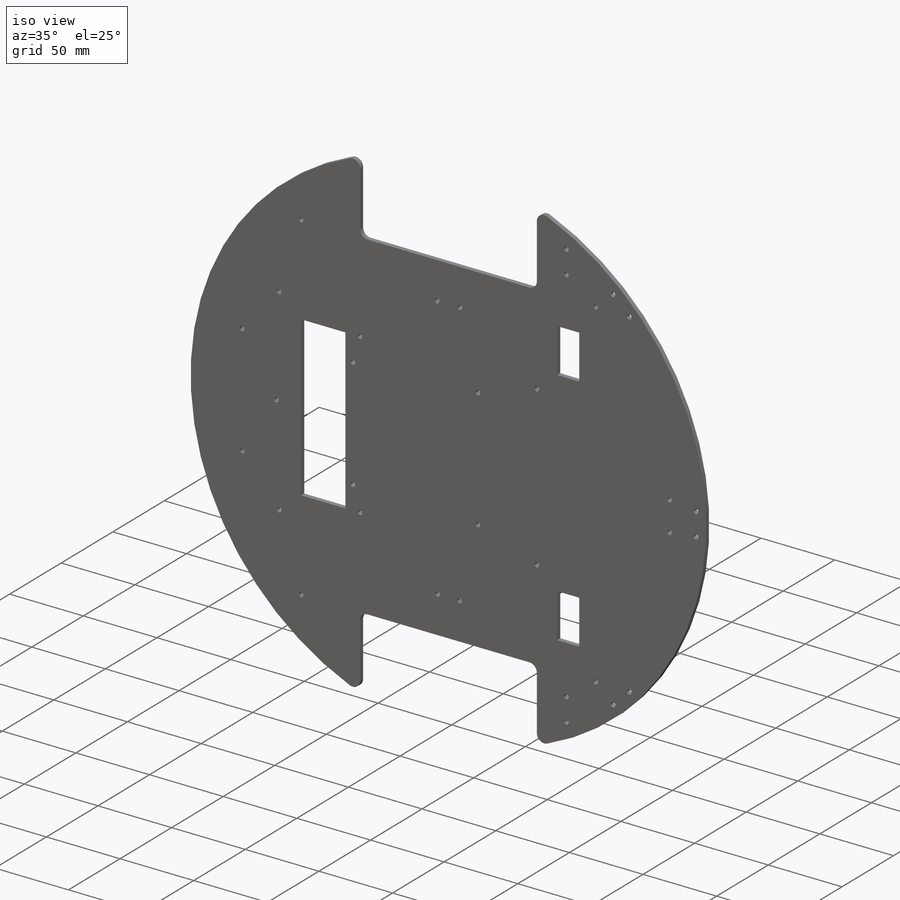
[diagram: iso view]
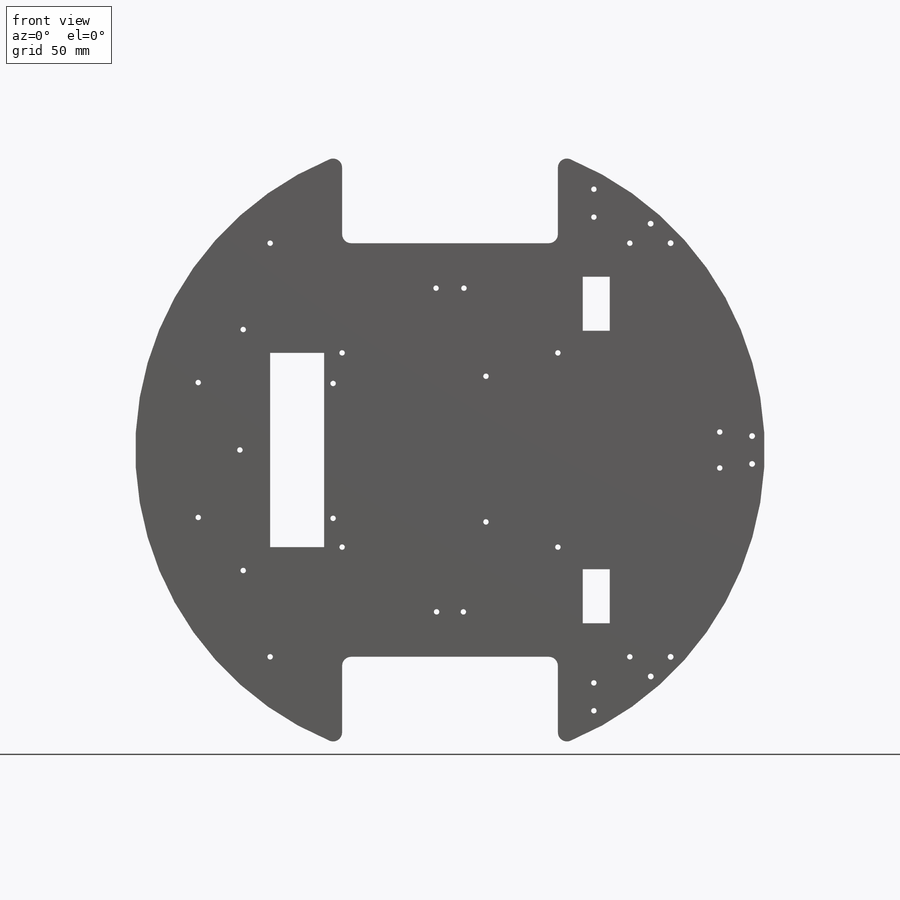
[diagram: front view]
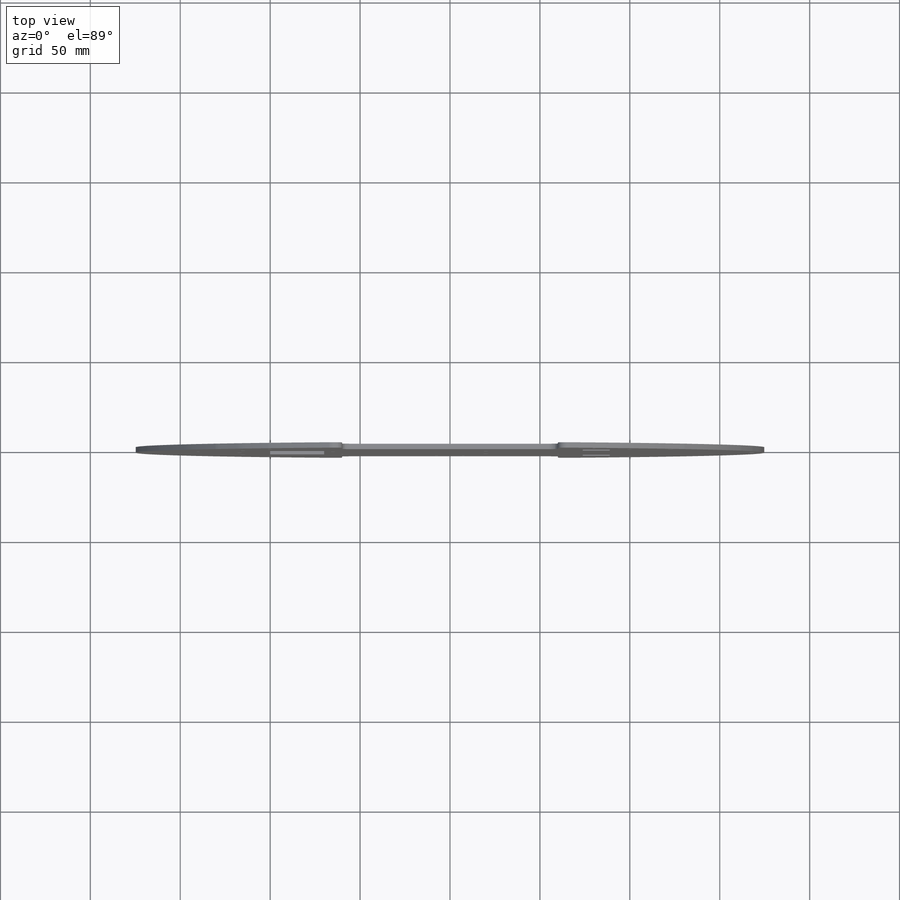
[diagram: top view]
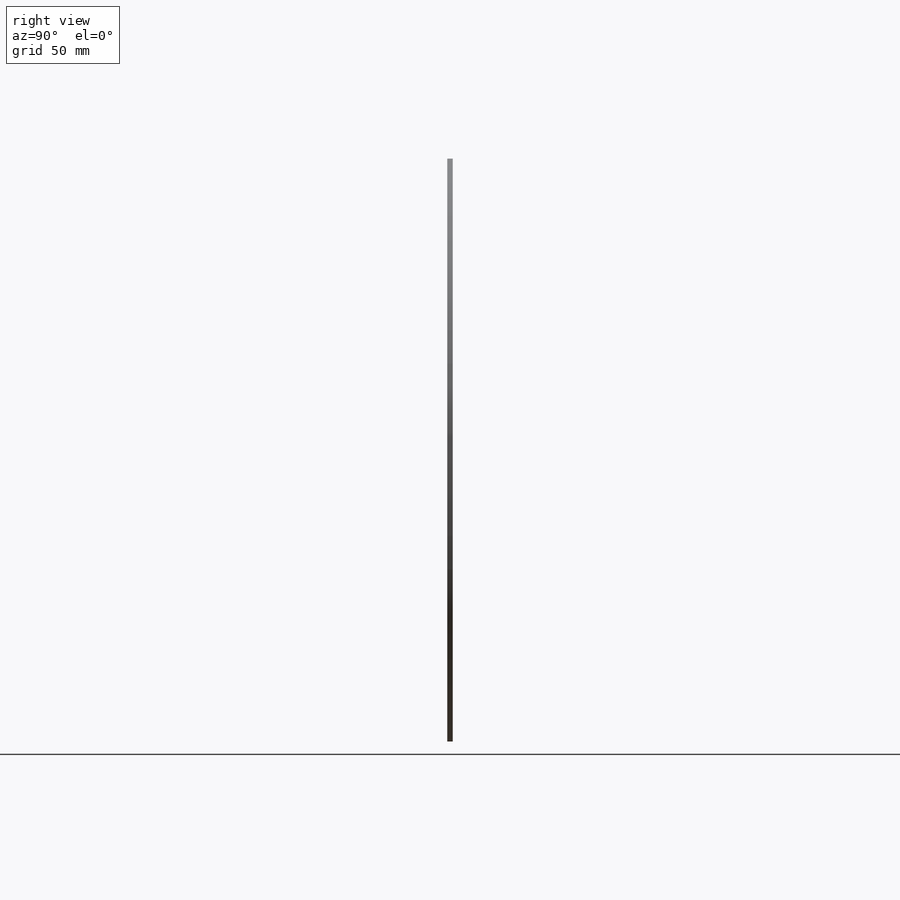
[diagram: right view]
SOLIDWORKS PART (.sldprt)
format: sldprt  version: not decoded by parser v0  size: 591,360 bytes
history: native  units: mm
features: sketch x14, cut_extrude x13, plane x3, fillet x3, material x1, extrude x1 + 2 further entries (+8 scaffold rows collapsed)
feature tree (45):
  scaffold x8  (default folders/planes/origin — collapsed)
  material  "ｱｸﾘﾙ (中-上級の耐衝撃性)"
  "ｻｰﾌｪｽ ﾎﾞﾃﾞｨ"
  "ｿﾘｯﾄﾞ ﾎﾞﾃﾞｨ"
  plane  "正面"
  plane  "平面"
  plane  "右側面"
  sketch  "ｽｹｯﾁ1"  dims[D1=350.0mm]
  extrude  "ﾎﾞｽ - 押し出し1"  Depth=3mm
  sketch  "ｽｹｯﾁ2"  dims[D1=115.0mm D2=60.0mm D3=60.0mm D4=60.0mm D5=115.0mm D6=60.0mm]
  cut_extrude  "ｶｯﾄ - 押し出し1"  Depth=3mm
  fillet  "ﾌｨﾚｯﾄ1"  Radius=5mm
  fillet  "ﾌｨﾚｯﾄ2"  Radius=5mm
  fillet  "ﾌｨﾚｯﾄ3"  Radius=5mm
  sketch  "ｽｹｯﾁ5"  dims[D3=3.0mm D4=3.0mm D5=3.0mm D6=3.0mm D1=100.0mm D2=100.0mm]
  cut_extrude  "ｶｯﾄ - 押し出し4"  Depth=3mm
  sketch  "ｽｹｯﾁ6"  dims[D3=3.0mm D4=3.0mm D5=3.0mm D6=3.0mm D1=120.0mm D2=108.0mm]
  cut_extrude  "ｶｯﾄ - 押し出し5"  Depth=3mm
  sketch  "ｽｹｯﾁ7"  dims[D1=10.0mm D2=108.0mm D3=30.0mm]
  cut_extrude  "ｶｯﾄ - 押し出し6"  Depth=3mm
  sketch  "ｽｹｯﾁ8"  dims[D4=3.0mm D5=3.0mm D6=3.0mm D1=15.0mm D2=67.0mm D3=67.0mm]
  cut_extrude  "ｶｯﾄ - 押し出し7"  Depth=3mm
  sketch  "ｽｹｯﾁ9"  dims[D7=3.0mm D8=3.0mm D9=3.0mm D10=3.0mm D1=5.0mm D2=37.0mm D3=38.0mm D4=85.0mm D5=41.0mm D6=40.0mm]
  cut_extrude  "ｶｯﾄ - 押し出し8"  Depth=10mm
  sketch  "ｽｹｯﾁ10"  dims[c1.D7=3.2mm c1.D8=3.2mm c1.D11=3.2mm c1.D12=3.2mm c1.D15=3.2mm c1.D16=3.2mm c1.D1=~152.23663mm c2.D1=45.8deg c2.D2=~152.23663mm c3.D2=45.8deg c3.D3=7.0mm c3.D4=7.0mm c3.D5=7.75mm c3.D6=7.75mm c3.D9=7.75mm c3.D10=7.75mm c3.D13=7.75mm c3.D14=7.75mm]
  cut_extrude  "ｶｯﾄ - 押し出し9"  Depth=10mm
  sketch  "ｽｹｯﾁ11"  dims[c1.D1=230.0mm c1.D2=115.0mm c2.D2=45.0deg c2.D3=~81.31728mm c3.D3=45.0deg c3.D4=30.0mm c3.D5=15.0mm c3.D6=15.0mm c3.D7=30.0mm]
  cut_extrude  "ｶｯﾄ - 押し出し10"  Depth=10mm
  sketch  "ｽｹｯﾁ17"  dims[D1=3.0mm D2=3.0mm D3=3.0mm D4=3.0mm D5=90.0mm D6=90.0mm D7=7.75mm D8=7.75mm D9=90.0mm D10=90.0mm D11=7.45mm D12=7.45mm]
  cut_extrude  "ｶｯﾄ - 押し出し12"  [1 undecoded]
  sketch  "ｽｹｯﾁ29"  dims[c1.D1=3.0mm c1.D4=3.0mm c1.D2=80.0mm c1.D3=~159.496877mm c2.D2=80.0mm c2.D3=145.0mm c2.D5=129.5mm c2.D6=80.0mm]
  cut_extrude  "超音波(左)"  [1 undecoded]
  sketch  "ｽｹｯﾁ30"  dims[D1=3.0mm D4=3.0mm D2=80.0mm D3=129.5mm D5=145.0mm]
  cut_extrude  "超音波(右)"  [1 undecoded]
  sketch  "ｽｹｯﾁ31"  dims[D1=3.0mm D4=3.0mm D2=140.0mm D3=37.5mm D5=37.5mm D6=140.0mm]
  cut_extrude  "電源ボード"  [1 undecoded]
  sketch  "ｽｹｯﾁ32"  dims[c1.D1=3.0mm c1.D2=3.0mm c1.D4=3.0mm c1.D5=3.0mm c2.D2=10.0mm c2.D3=150.0mm c2.D5=10.0mm c2.D6=150.0mm]
  cut_extrude  "WEBカメラ"  [1 undecoded]
decode coverage: 26 of 31 modeling features carry decoded parameters; 2 rows unclassified (native names shown)
note: ~ marks probable driven/reference dimensions
note: 5 parameter values undecoded
summary: no parameter record found for 5 features
note: suppression state not decoded; provenance and decode notes live in map.json
